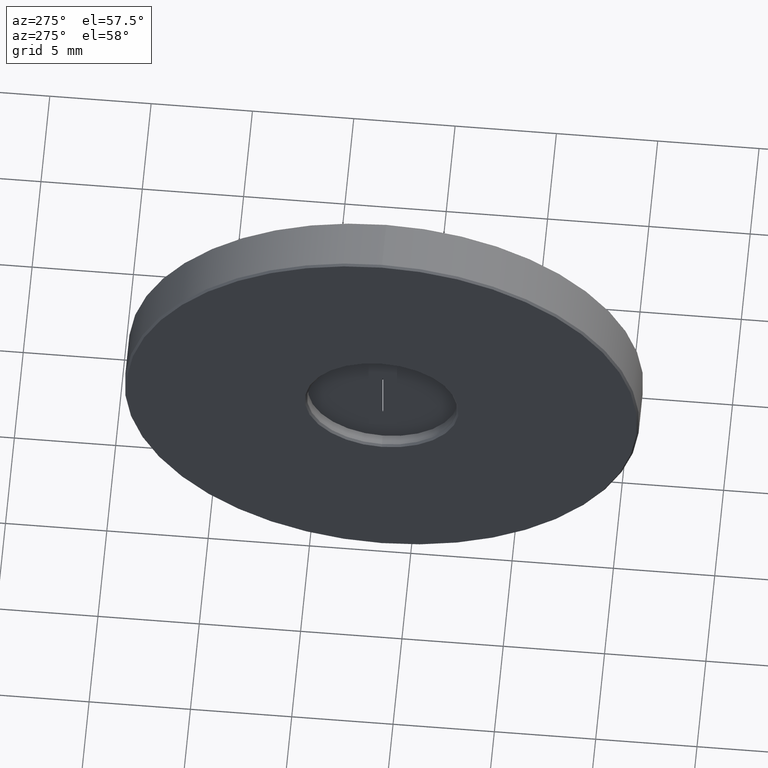
[diagram: clean part render]
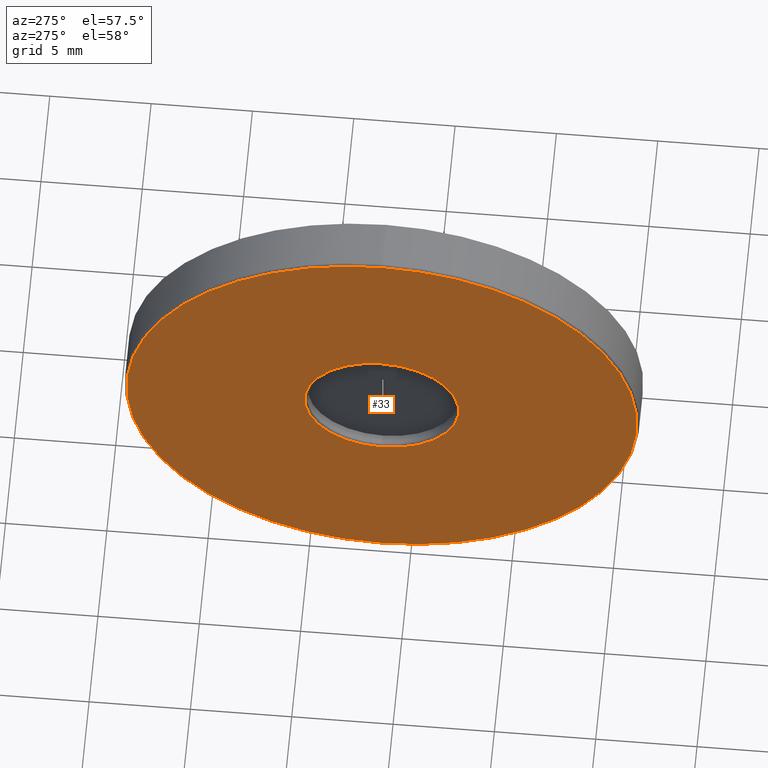
[diagram: same view with one face highlighted and labeled with its STEP entity id]
A machine part, auxiliary view. The second image highlights one B-rep face of the part: STEP entity #33.
In plain terms, the highlighted planar face has unit normal (1, 0, 0).
Its self-contained STEP definition (entity closure, byte-faithful):
#5 = EDGE_CURVE ( 'NONE', #496, #565, #749, .T. ) ;
#30 = AXIS2_PLACEMENT_3D ( 'NONE', #869, #145, #940 ) ;
#33 = ADVANCED_FACE ( 'NONE', ( #463, #96 ), #478, .F. ) ;
#37 = CARTESIAN_POINT ( 'NONE',  ( -4.934863851252999645, 1.436758841085000071, 25.39999999999999858 ) ) ;
#47 = CIRCLE ( 'NONE', #121, 12.59999999999999964 ) ;
#54 = EDGE_LOOP ( 'NONE', ( #847, #454 ) ) ;
#76 = AXIS2_PLACEMENT_3D ( 'NONE', #175, #166, #462 ) ;
#96 = FACE_BOUND ( 'NONE', #130, .T. ) ;
#100 = DIRECTION ( 'NONE',  ( 0.000000000000000000, 1.000000000000000000, 0.000000000000000000 ) ) ;
#121 = AXIS2_PLACEMENT_3D ( 'NONE', #265, #278, #407 ) ;
#130 = EDGE_LOOP ( 'NONE', ( #668, #452 ) ) ;
#145 = DIRECTION ( 'NONE',  ( 1.000000000000000000, 0.000000000000000000, 0.000000000000000000 ) ) ;
#159 = CARTESIAN_POINT ( 'NONE',  ( -4.934863851252999645, 1.436758841085000071, 12.79999999999999893 ) ) ;
#166 = DIRECTION ( 'NONE',  ( 1.000000000000000000, 0.000000000000000000, 0.000000000000000000 ) ) ;
#175 = CARTESIAN_POINT ( 'NONE',  ( -4.934863851252999645, 1.436758841085000071, 25.39999999999999858 ) ) ;
#183 = AXIS2_PLACEMENT_3D ( 'NONE', #37, #547, #468 ) ;
#186 = CARTESIAN_POINT ( 'NONE',  ( -4.934863851252999645, 1.436758841085000515, 21.59999999999999787 ) ) ;
#265 = CARTESIAN_POINT ( 'NONE',  ( -4.934863851252999645, 1.436758841085000071, 25.39999999999999858 ) ) ;
#273 = VERTEX_POINT ( 'NONE', #186 ) ;
#278 = DIRECTION ( 'NONE',  ( -1.000000000000000000, 0.000000000000000000, 0.000000000000000000 ) ) ;
#291 = EDGE_CURVE ( 'NONE', #500, #273, #686, .T. ) ;
#381 = CARTESIAN_POINT ( 'NONE',  ( -4.934863851252999645, 1.436758841085001626, 38.00000000000000000 ) ) ;
#407 = DIRECTION ( 'NONE',  ( 0.000000000000000000, 0.000000000000000000, -1.000000000000000000 ) ) ;
#413 = CIRCLE ( 'NONE', #76, 3.800000000000001155 ) ;
#452 = ORIENTED_EDGE ( 'NONE', *, *, #812, .T. ) ;
#454 = ORIENTED_EDGE ( 'NONE', *, *, #5, .T. ) ;
#462 = DIRECTION ( 'NONE',  ( 0.000000000000000000, 0.000000000000000000, -1.000000000000000000 ) ) ;
#463 = FACE_OUTER_BOUND ( 'NONE', #54, .T. ) ;
#468 = DIRECTION ( 'NONE',  ( 0.000000000000000000, 0.000000000000000000, -1.000000000000000000 ) ) ;
#478 = PLANE ( 'NONE',  #688 ) ;
#496 = VERTEX_POINT ( 'NONE', #381 ) ;
#500 = VERTEX_POINT ( 'NONE', #540 ) ;
#540 = CARTESIAN_POINT ( 'NONE',  ( -4.934863851252999645, 1.436758841085000071, 29.19999999999999929 ) ) ;
#547 = DIRECTION ( 'NONE',  ( -1.000000000000000000, 0.000000000000000000, 0.000000000000000000 ) ) ;
#550 = CARTESIAN_POINT ( 'NONE',  ( -4.934863851252999645, 1.436758841085000071, 25.39999999999999858 ) ) ;
#565 = VERTEX_POINT ( 'NONE', #159 ) ;
#668 = ORIENTED_EDGE ( 'NONE', *, *, #291, .T. ) ;
#686 = CIRCLE ( 'NONE', #30, 3.800000000000001155 ) ;
#688 = AXIS2_PLACEMENT_3D ( 'NONE', #550, #896, #100 ) ;
#749 = CIRCLE ( 'NONE', #183, 12.59999999999999964 ) ;
#812 = EDGE_CURVE ( 'NONE', #273, #500, #413, .T. ) ;
#847 = ORIENTED_EDGE ( 'NONE', *, *, #916, .T. ) ;
#869 = CARTESIAN_POINT ( 'NONE',  ( -4.934863851252999645, 1.436758841085000071, 25.39999999999999858 ) ) ;
#896 = DIRECTION ( 'NONE',  ( 1.000000000000000000, 0.000000000000000000, 0.000000000000000000 ) ) ;
#916 = EDGE_CURVE ( 'NONE', #565, #496, #47, .T. ) ;
#940 = DIRECTION ( 'NONE',  ( 0.000000000000000000, 0.000000000000000000, -1.000000000000000000 ) ) ;